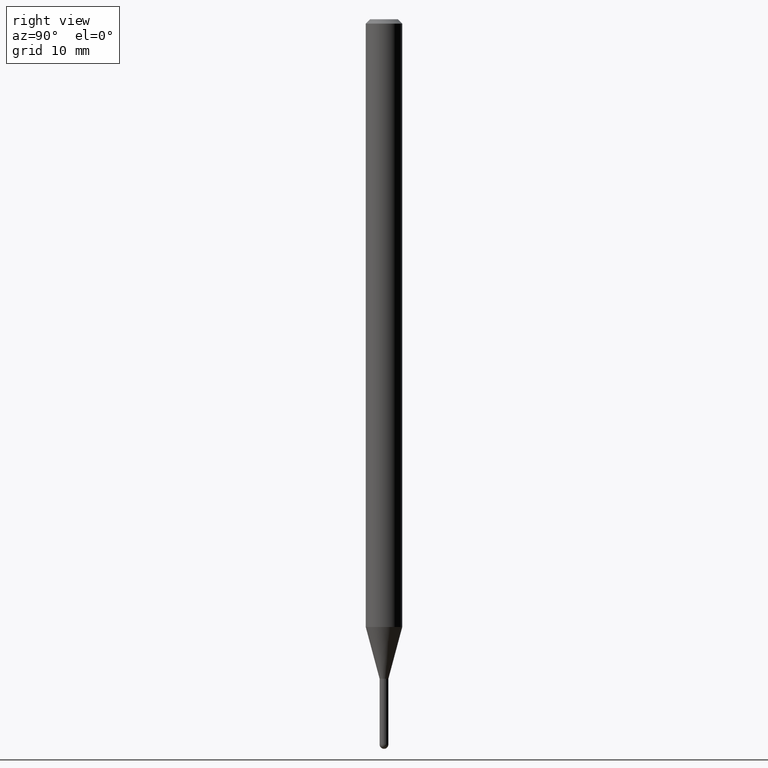
[diagram: clean part render]
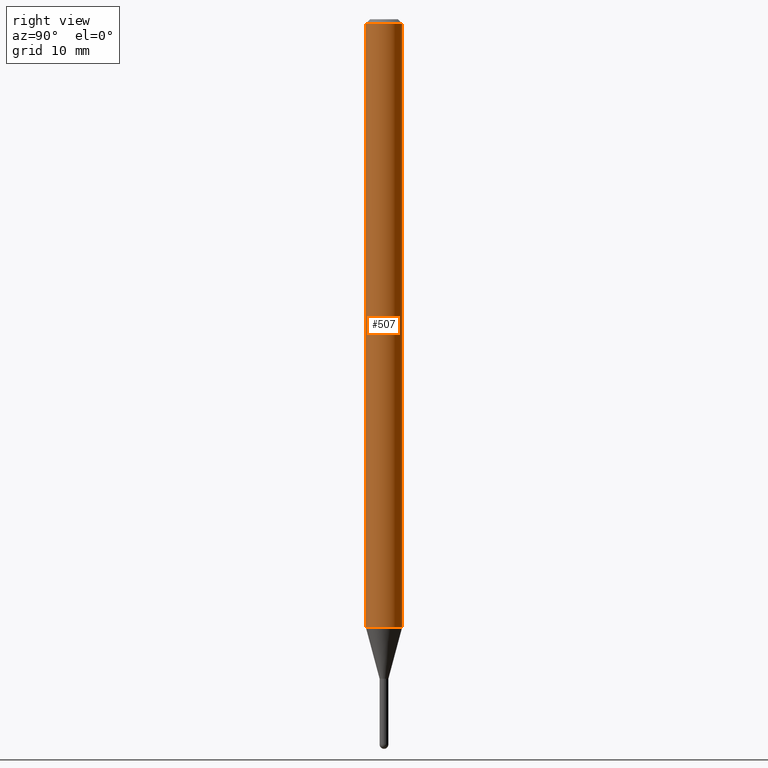
[diagram: same view with one face highlighted and labeled with its STEP entity id]
A machine part, right view. The second image highlights one B-rep face of the part: STEP entity #507.
In plain terms, the highlighted cylindrical surface (edge-blend (fillet) strip) has radius 1.5875 mm, axis along (-0, 0, 1).
Its self-contained STEP definition (entity closure, byte-faithful):
#4 = CARTESIAN_POINT ( 'NONE',  ( -4.364351673553408372E-16, -0.06250000000000728584, -2.082727586640484851 ) ) ;
#32 = VERTEX_POINT ( 'NONE', #252 ) ;
#37 = DIRECTION ( 'NONE',  ( -2.445532086721361368E-29, 3.491390717513566819E-15, 1.000000000000000000 ) ) ;
#43 = CIRCLE ( 'NONE', #421, 0.06250000000000000000 ) ;
#55 = DIRECTION ( 'NONE',  ( -6.982962677686265922E-15, -1.000000000000000000, 4.370956789862821150E-15 ) ) ;
#85 = CIRCLE ( 'NONE', #489, 0.06250000000000000000 ) ;
#90 = DIRECTION ( 'NONE',  ( -6.982962677686265922E-15, -1.000000000000000000, 3.491390717513566819E-15 ) ) ;
#94 = DIRECTION ( 'NONE',  ( -2.445532086721361368E-29, 3.491390717513566819E-15, 1.000000000000000000 ) ) ;
#111 = ORIENTED_EDGE ( 'NONE', *, *, #216, .F. ) ;
#115 = VECTOR ( 'NONE', #37, 39.37007874015748143 ) ;
#157 = CARTESIAN_POINT ( 'NONE',  ( -4.364351673553916201E-16, -0.06250000000000000000, 2.182119198445979262E-16 ) ) ;
#193 = VERTEX_POINT ( 'NONE', #501 ) ;
#196 = CARTESIAN_POINT ( 'NONE',  ( 5.093377141029050254E-29, -7.271615763106022658E-15, -2.082727586640484851 ) ) ;
#216 = EDGE_CURVE ( 'NONE', #436, #32, #85, .T. ) ;
#232 = EDGE_CURVE ( 'NONE', #503, #436, #441, .T. ) ;
#248 = CYLINDRICAL_SURFACE ( 'NONE', #432, 0.06250000000000000000 ) ;
#252 = CARTESIAN_POINT ( 'NONE',  ( 4.440892098501138921E-16, 0.06249999999999995143, -0.01500000000000028394 ) ) ;
#268 = CARTESIAN_POINT ( 'NONE',  ( 3.668298130082058884E-31, -5.237086076270373229E-17, -0.01500000000000006710 ) ) ;
#284 = DIRECTION ( 'NONE',  ( -2.445532086721361648E-29, 3.491390717513566819E-15, 1.000000000000000000 ) ) ;
#292 = CARTESIAN_POINT ( 'NONE',  ( 0.000000000000000000, 0.000000000000000000, 0.000000000000000000 ) ) ;
#315 = DIRECTION ( 'NONE',  ( -6.982962677686265922E-15, -1.000000000000000000, 3.483106191921935554E-15 ) ) ;
#326 = FACE_OUTER_BOUND ( 'NONE', #429, .T. ) ;
#370 = ORIENTED_EDGE ( 'NONE', *, *, #464, .T. ) ;
#371 = CARTESIAN_POINT ( 'NONE',  ( 4.440892098500625669E-16, 0.06250000000000000000, -2.182119198445979262E-16 ) ) ;
#378 = ORIENTED_EDGE ( 'NONE', *, *, #232, .F. ) ;
#383 = CARTESIAN_POINT ( 'NONE',  ( -4.364351673553912750E-16, -0.06250000000000005551, -0.01499999999999984852 ) ) ;
#398 = LINE ( 'NONE', #371, #115 ) ;
#421 = AXIS2_PLACEMENT_3D ( 'NONE', #196, #482, #55 ) ;
#427 = DIRECTION ( 'NONE',  ( -2.445532086721361648E-29, 3.491390717513566819E-15, 1.000000000000000000 ) ) ;
#429 = EDGE_LOOP ( 'NONE', ( #512, #370, #111, #378 ) ) ;
#432 = AXIS2_PLACEMENT_3D ( 'NONE', #292, #284, #90 ) ;
#436 = VERTEX_POINT ( 'NONE', #383 ) ;
#441 = LINE ( 'NONE', #157, #461 ) ;
#461 = VECTOR ( 'NONE', #94, 39.37007874015748143 ) ;
#464 = EDGE_CURVE ( 'NONE', #193, #32, #398, .T. ) ;
#482 = DIRECTION ( 'NONE',  ( -2.445532086721361648E-29, 3.491390717513566819E-15, 1.000000000000000000 ) ) ;
#489 = AXIS2_PLACEMENT_3D ( 'NONE', #268, #427, #315 ) ;
#499 = EDGE_CURVE ( 'NONE', #503, #193, #43, .T. ) ;
#501 = CARTESIAN_POINT ( 'NONE',  ( 4.440892098501133005E-16, 0.06249999999999271416, -2.082727586640485296 ) ) ;
#503 = VERTEX_POINT ( 'NONE', #4 ) ;
#507 = ADVANCED_FACE ( 'NONE', ( #326 ), #248, .T. ) ;
#512 = ORIENTED_EDGE ( 'NONE', *, *, #499, .T. ) ;